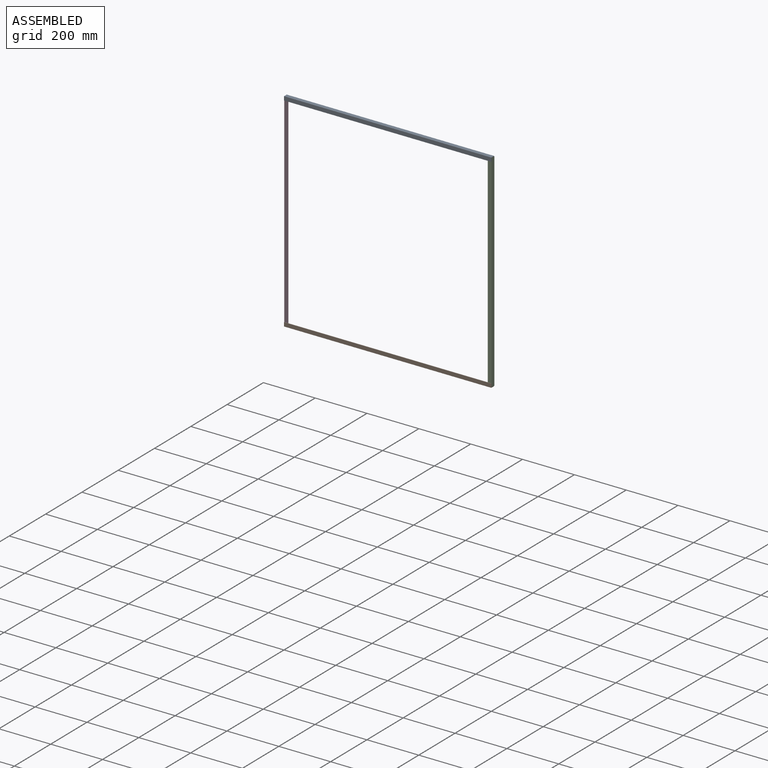
[diagram: assembled view]
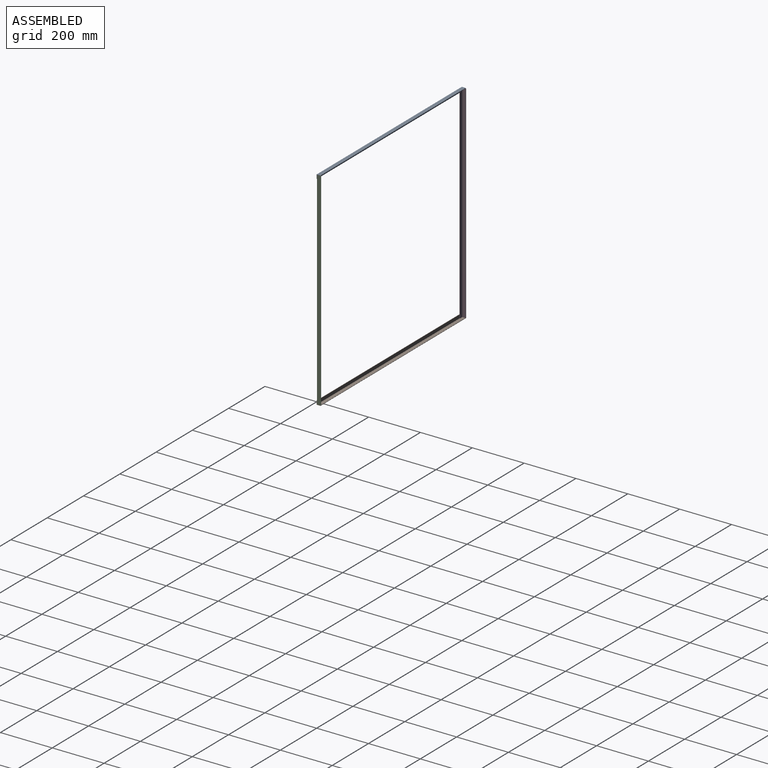
[diagram: assembled view, second angle]
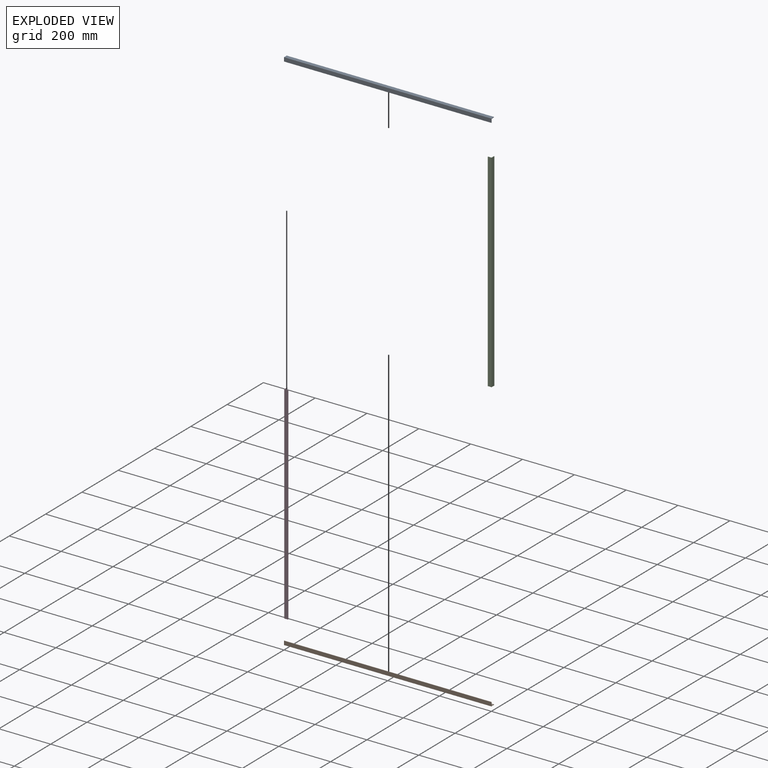
[diagram: exploded view]
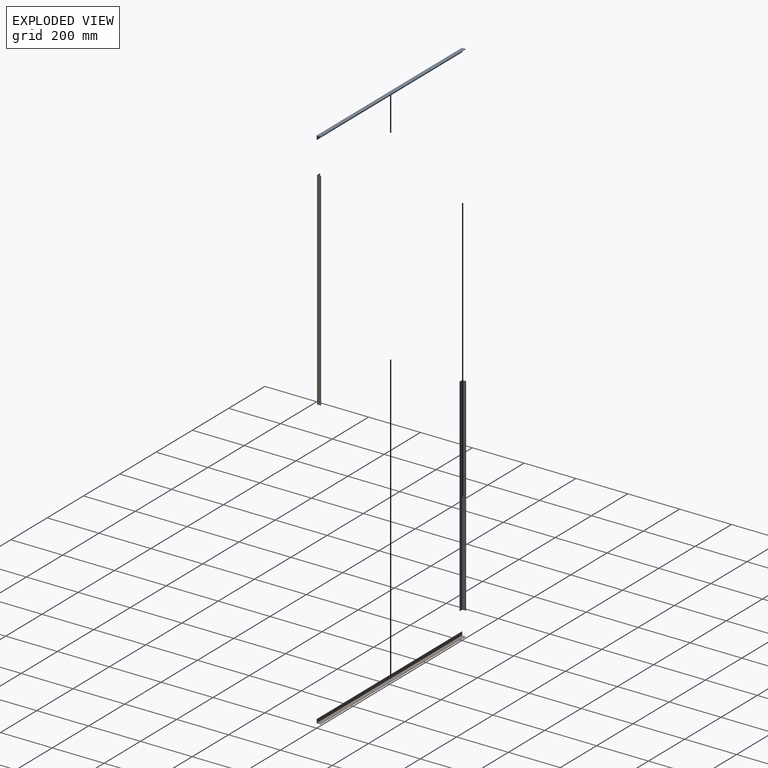
[diagram: exploded view, second angle]
ASSEMBLY  parts=4 mates=9
PART A: 8 faces, bbox 800x15x15 mm
  f0: plane 800x13.5mm, normal (0,0,-1), area 10800mm2, adj f1,f5,f6,f7
  f1: plane 800x1.5mm, normal (0,1,0), area 1200mm2, adj f0,f2,f6,f7
  f2: plane 800x15mm, normal (0,0,1), area 12000mm2, adj f1,f3,f6,f7
  f3: plane 800x15mm, normal (0,-1,0), area 12000mm2, adj f2,f4,f6,f7
  f4: plane 800x1.5mm, normal (0,0,-1), area 1200mm2, adj f3,f5,f6,f7
  f5: plane 800x13.5mm, normal (0,1,0), area 10800mm2, adj f0,f4,f6,f7
  f6: plane 15x15mm, normal (1,0,0), area 42.7mm2, adj f0,f1,f2,f3,f4,f5
  f7: plane 15x15mm, normal (-1,0,0), area 42.7mm2, adj f0,f1,f2,f3,f4,f5
PART B: same geometry as A
PART C: same geometry as A
PART D: same geometry as A
PLACE A at identity fixed
PLACE B rot(axis=(1,0,0),90deg) t=(0,15,-788)mm
PLACE C rot(axis=(0,1,0),90deg) t=(785,1.5,13.5)mm
PLACE D rot(axis=(0,-1,0),90deg) t=(15,1.5,-786.5)mm
MATE planar A.f0 <-> C.f7  axis (0,0,-1) through (800,1.5,13.5)mm
MATE planar A.f0 <-> D.f6  axis (0,0,-1) through (0,8.25,13.5)mm
MATE planar A.f5 <-> C.f3  axis (0,1,0) through (800,1.5,0)mm
MATE planar D.f3 <-> A.f5  axis (0,-1,0) through (7.5,1.5,-386.5)mm
MATE planar C.f3 <-> B.f0  axis (0,-1,0) through (800,1.5,-786.5)mm
MATE planar D.f2 <-> A.f7  axis (-1,0,0) through (0,9,-386.5)mm
MATE planar C.f2 <-> B.f6  axis (1,0,0) through (800,1.5,-786.5)mm
MATE planar B.f5 <-> C.f6  axis (0,0,-1) through (800,1.5,-786.5)mm
MATE planar C.f2 <-> A.f6  axis (1,0,0) through (800,9,-386.5)mm
